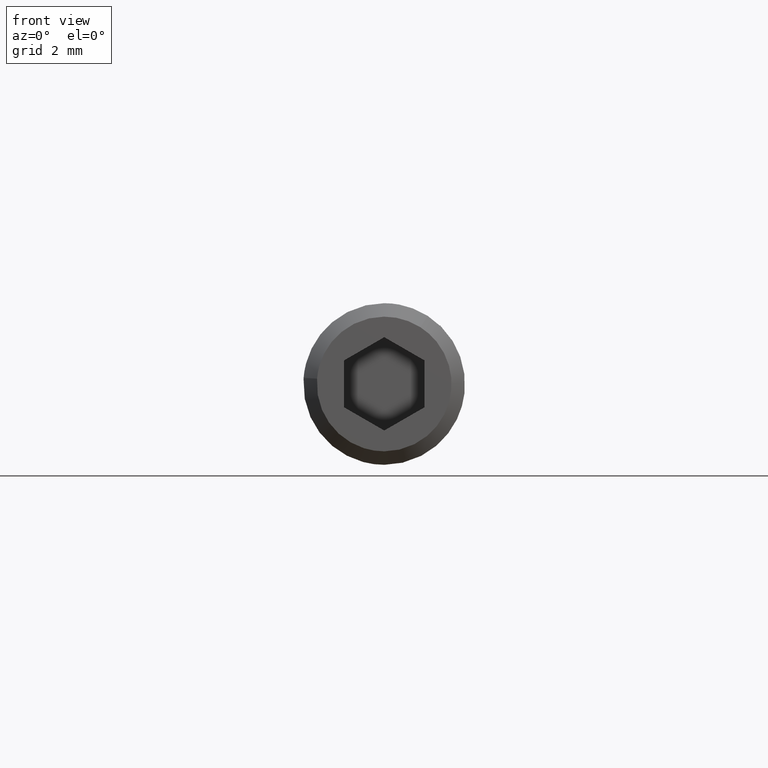
[diagram: clean part render]
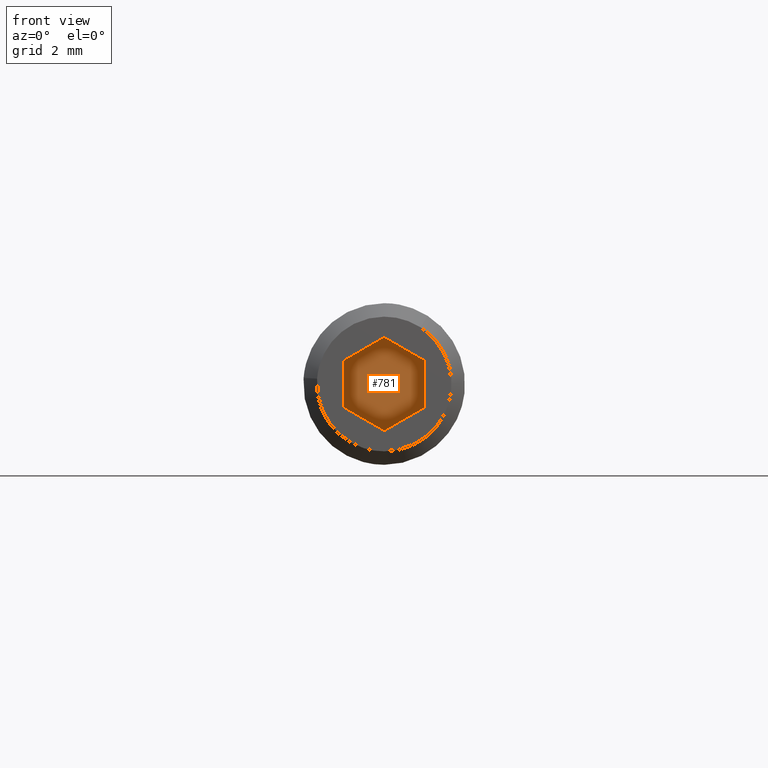
[diagram: same view with one face highlighted and labeled with its STEP entity id]
A machine part, front view. The second image highlights one B-rep face of the part: STEP entity #781.
In plain terms, the highlighted face is a freeform B-spline surface patch.
Its self-contained STEP definition (entity closure, byte-faithful):
#732=CARTESIAN_POINT('',(-1.649849994185418,-20.050000000000001,1.905082920704409));
#733=CARTESIAN_POINT('',(1.649850074651688,-20.050000000000001,1.905082920704409));
#734=CARTESIAN_POINT('',(-1.649849994185418,-20.050000000000001,-1.905082982647380));
#735=CARTESIAN_POINT('',(1.649850074651688,-20.050000000000001,-1.905082982647380));
#736=B_SPLINE_SURFACE_WITH_KNOTS('',1,1,((#732,#734),(#733,#735)),.UNSPECIFIED.,.F.,.F.,.U.,(2,2),(2,2),(0.0,3.299700068837106),(0.0,3.810165903351789),.UNSPECIFIED.);
#737=CARTESIAN_POINT('',(-1.500000000000000,-20.050000000000001,0.866025000000000));
#738=VERTEX_POINT('',#737);
#739=CARTESIAN_POINT('',(-1.500000000000000,-20.050000000000001,-0.866025000000000));
#740=VERTEX_POINT('',#739);
#741=CARTESIAN_POINT('',(-1.500000000000000,-20.050000000000001,0.866025000000000));
#742=CARTESIAN_POINT('',(-1.500000000000000,-20.050000000000001,-0.866025000000000));
#743=QUASI_UNIFORM_CURVE('',1,(#741,#742),.UNSPECIFIED.,.F.,.U.);
#744=EDGE_CURVE('',#738,#740,#743,.T.);
#745=ORIENTED_EDGE('',*,*,#744,.T.);
#746=CARTESIAN_POINT('',(0.0,-20.050000000000001,-1.732051000000000));
#747=VERTEX_POINT('',#746);
#748=CARTESIAN_POINT('',(-1.500000000000000,-20.050000000000001,-0.866025000000000));
#749=CARTESIAN_POINT('',(0.0,-20.050000000000001,-1.732051000000000));
#750=QUASI_UNIFORM_CURVE('',1,(#748,#749),.UNSPECIFIED.,.F.,.U.);
#751=EDGE_CURVE('',#740,#747,#750,.T.);
#752=ORIENTED_EDGE('',*,*,#751,.T.);
#753=CARTESIAN_POINT('',(1.500000000000000,-20.050000000000001,-0.866025000000000));
#754=VERTEX_POINT('',#753);
#755=CARTESIAN_POINT('',(0.0,-20.050000000000001,-1.732051000000000));
#756=CARTESIAN_POINT('',(1.500000000000000,-20.050000000000001,-0.866025000000000));
#757=QUASI_UNIFORM_CURVE('',1,(#755,#756),.UNSPECIFIED.,.F.,.U.);
#758=EDGE_CURVE('',#747,#754,#757,.T.);
#759=ORIENTED_EDGE('',*,*,#758,.T.);
#760=CARTESIAN_POINT('',(1.500000000000000,-20.050000000000001,0.866025000000000));
#761=VERTEX_POINT('',#760);
#762=CARTESIAN_POINT('',(1.500000000000000,-20.050000000000001,-0.866025000000000));
#763=CARTESIAN_POINT('',(1.500000000000000,-20.050000000000001,0.866025000000000));
#764=QUASI_UNIFORM_CURVE('',1,(#762,#763),.UNSPECIFIED.,.F.,.U.);
#765=EDGE_CURVE('',#754,#761,#764,.T.);
#766=ORIENTED_EDGE('',*,*,#765,.T.);
#767=CARTESIAN_POINT('',(0.0,-20.050000000000001,1.732051000000000));
#768=VERTEX_POINT('',#767);
#769=CARTESIAN_POINT('',(1.500000000000000,-20.050000000000001,0.866025000000000));
#770=CARTESIAN_POINT('',(0.0,-20.050000000000001,1.732051000000000));
#771=QUASI_UNIFORM_CURVE('',1,(#769,#770),.UNSPECIFIED.,.F.,.U.);
#772=EDGE_CURVE('',#761,#768,#771,.T.);
#773=ORIENTED_EDGE('',*,*,#772,.T.);
#774=CARTESIAN_POINT('',(0.0,-20.050000000000001,1.732051000000000));
#775=CARTESIAN_POINT('',(-1.500000000000000,-20.050000000000001,0.866025000000000));
#776=QUASI_UNIFORM_CURVE('',1,(#774,#775),.UNSPECIFIED.,.F.,.U.);
#777=EDGE_CURVE('',#768,#738,#776,.T.);
#778=ORIENTED_EDGE('',*,*,#777,.T.);
#779=EDGE_LOOP('',(#745,#752,#759,#766,#773,#778));
#780=FACE_OUTER_BOUND('',#779,.T.);
#781=ADVANCED_FACE('',(#780),#736,.F.);